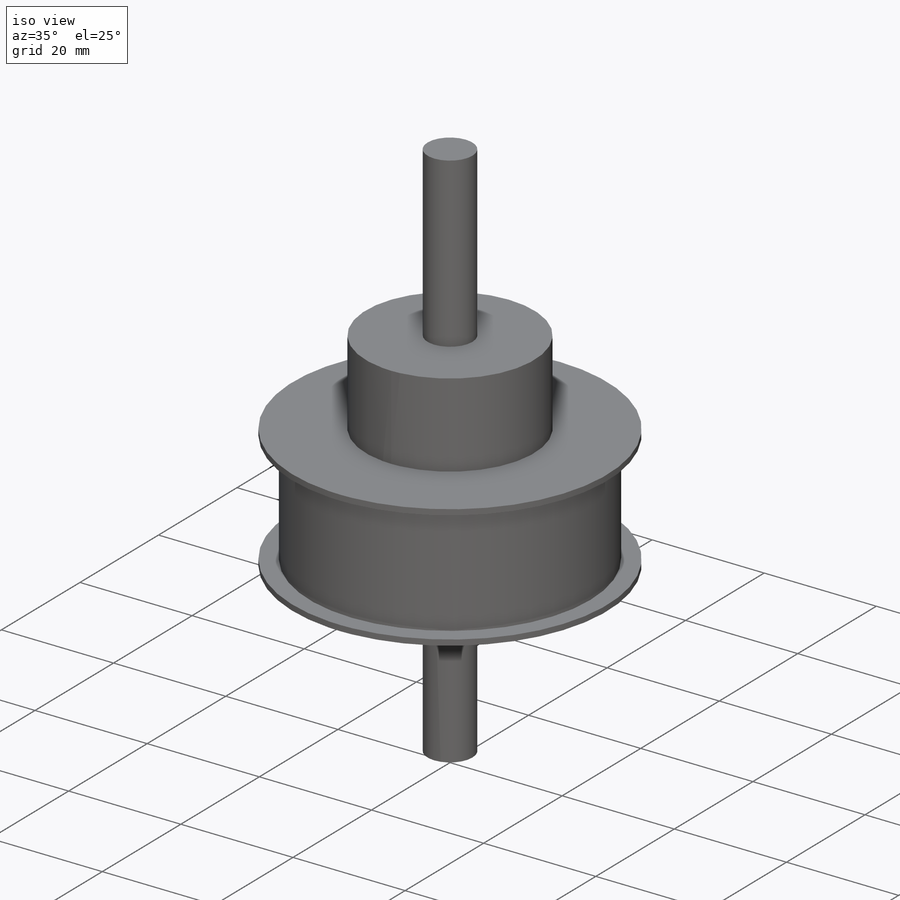
[diagram: iso view]
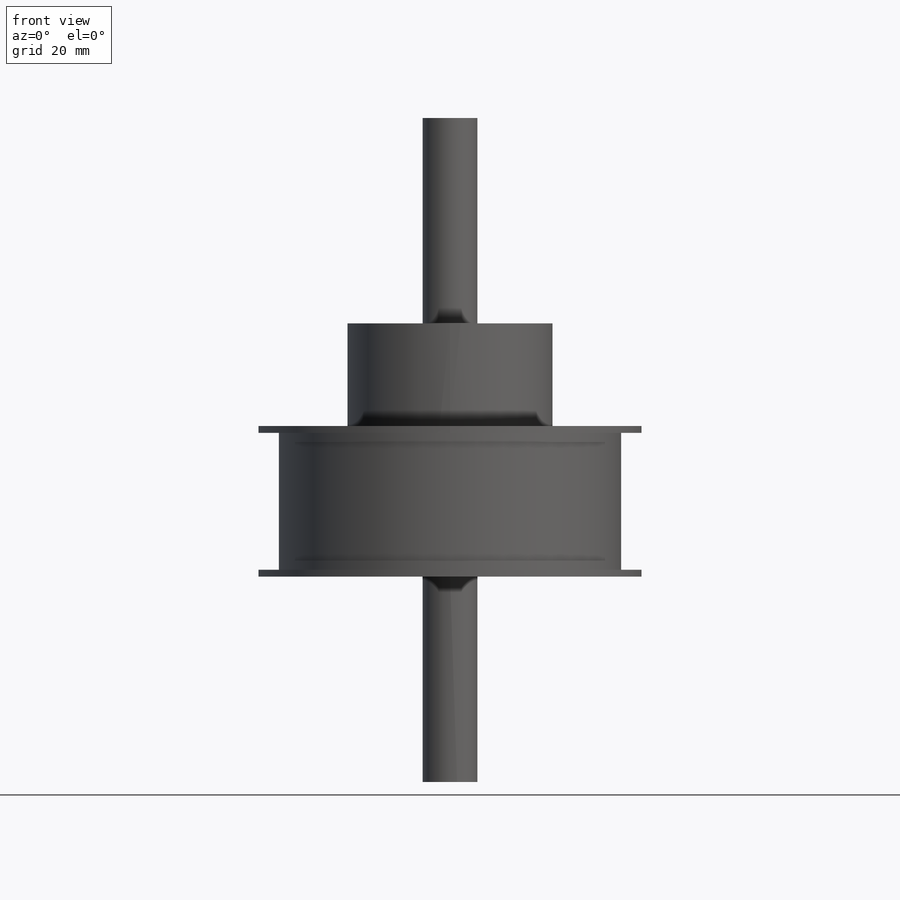
[diagram: front view]
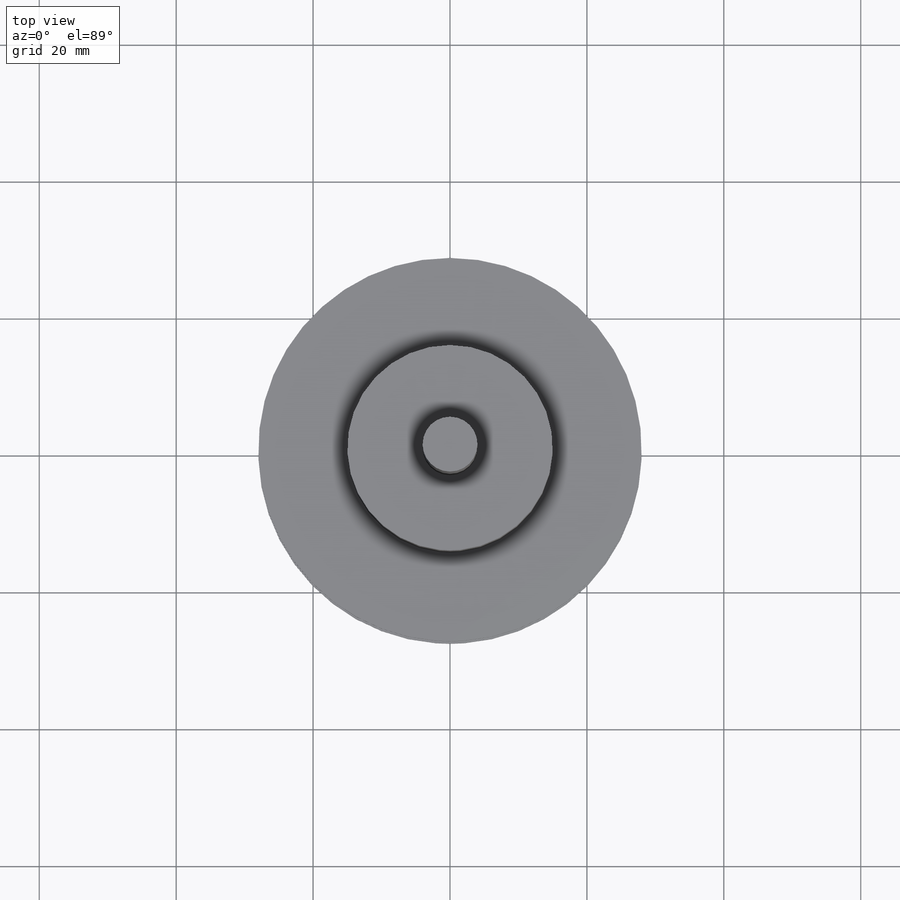
[diagram: top view]
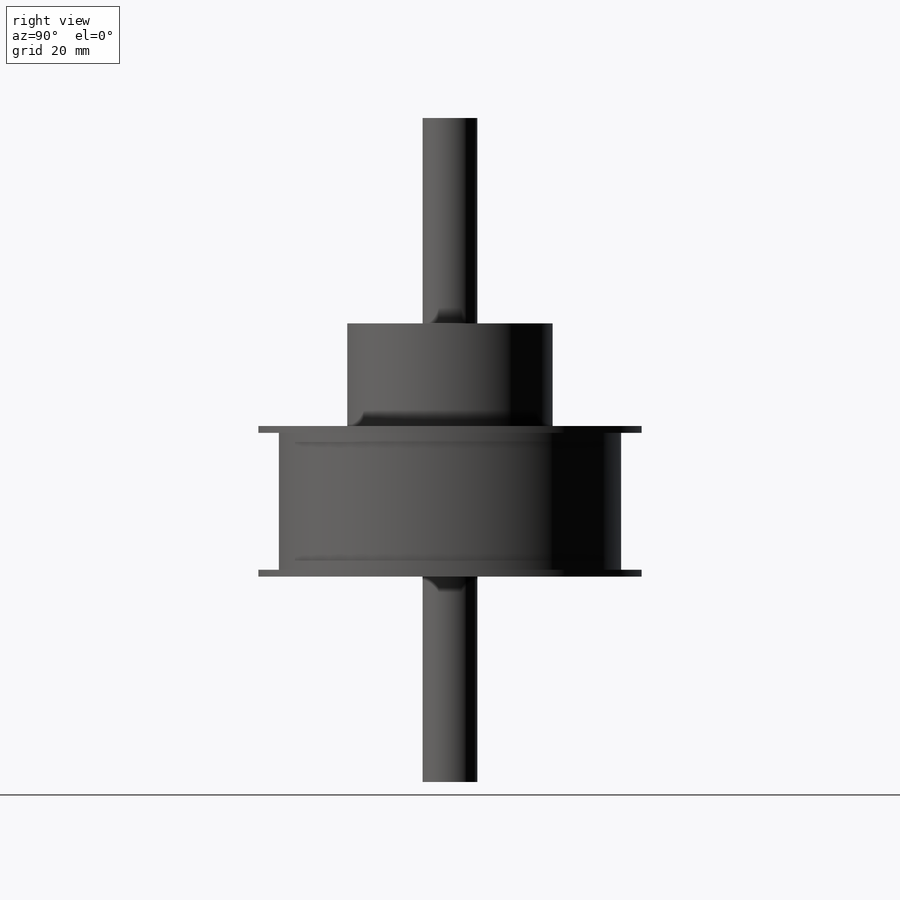
[diagram: right view]
SOLIDWORKS PART (.sldprt)
format: sldprt  version: not decoded by parser v0  size: 154,624 bytes
history: native  units: mm
features: sketch x6, extrude x6, plane x5, material x1 (+12 scaffold rows collapsed)
feature tree (30):
  scaffold x12  (default folders/planes/origin — collapsed)
  material  "Material <not specified>"
  sketch  "Sketch1"  dims[D1=~34.627609mm]
  extrude  "Boss-Extrude1"  Depth=21mm
  plane  "Plane1"  Offset=0mm
  sketch  "Sketch2"  dims[D1=~34.428424mm]
  extrude  "Boss-Extrude2"  Depth=1mm
  plane  "Plane2"  Offset=0mm
  sketch  "Sketch3"  dims[D1=~27.903217mm]
  extrude  "Boss-Extrude3"  Depth=1mm
  plane  "Plane3"  Offset=0mm
  sketch  "Sketch4"  dims[D1=~77.605677mm]
  extrude  "Boss-Extrude4"  Depth=15mm
  plane  "Plane4"  Offset=0mm
  sketch  "Sketch5"  dims[D1=~6.671247mm]
  extrude  "Boss-Extrude5"  Depth=30mm
  plane  "Plane5"  Offset=0mm
  sketch  "Sketch6"  dims[D1=~4.552613mm]
  extrude  "Boss-Extrude6"  Depth=30mm
decode coverage: 12 of 12 modeling features carry decoded parameters
note: ~ marks probable driven/reference dimensions
note: suppression state not decoded; provenance and decode notes live in map.json
